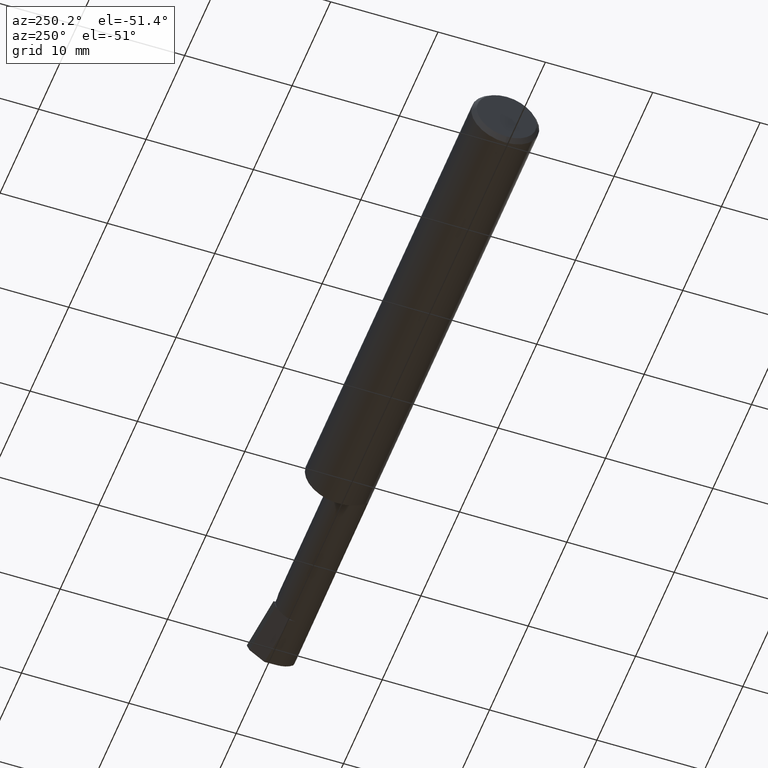
[diagram: clean part render]
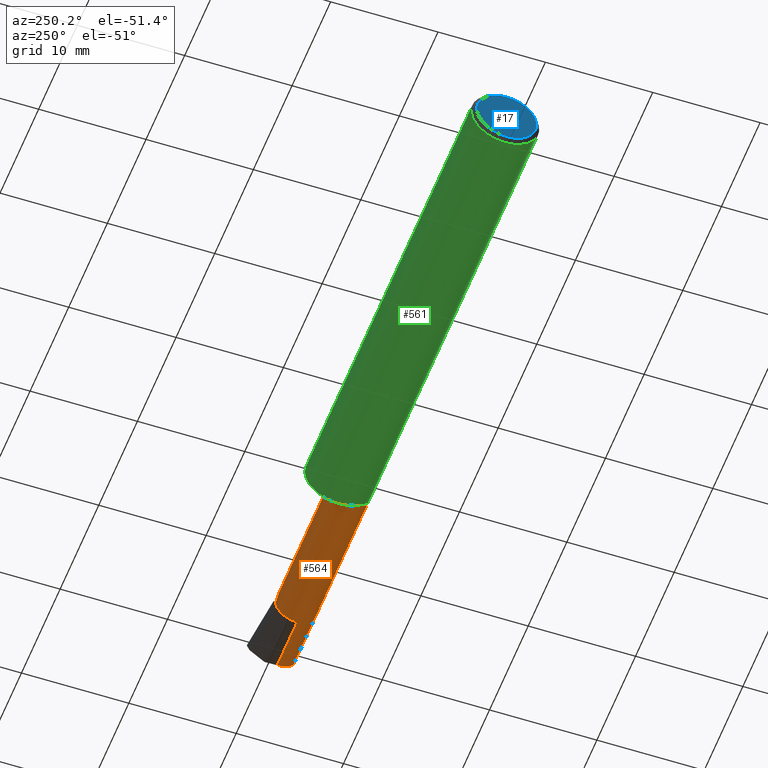
[diagram: same view with three faces highlighted in distinct colors, each labeled with its STEP entity id]
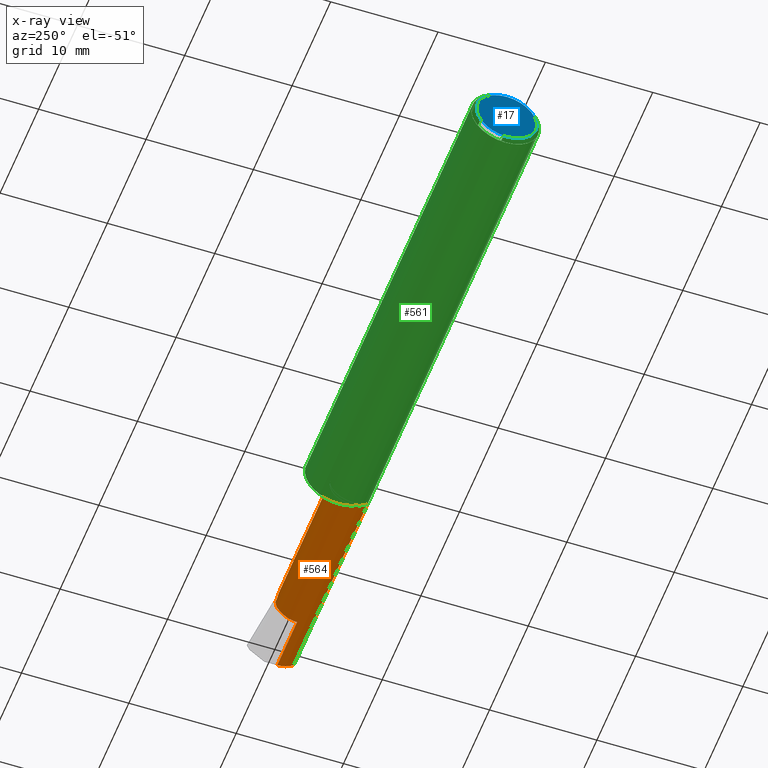
[diagram: x-ray of the same camera — body ghosted, the three highlighted faces saturated]
A machine part, auxiliary view with three faces highlighted in distinct colors.
The next image is the same camera in x-ray (body ghosted, the three faces saturated) — at least one of them is partly hidden behind the body in this view.
Their STEP definitions:

[orange] entity #564 — the highlighted cylindrical surface (edge-blend (fillet) strip) has radius 2.0104 mm, axis along (-1, 0, -0).
#1 = VERTEX_POINT ( 'NONE', #439 ) ;
#4 = DIRECTION ( 'NONE',  ( 1.000000000000000000, -3.414809992080329023E-18, 0.0000000000000000000 ) ) ;
#8 = EDGE_CURVE ( 'NONE', #317, #527, #427, .T. ) ;
#10 = CARTESIAN_POINT ( 'NONE',  ( 2.285000000000000142, -0.05399999999999999939, 0.0000000000000000000 ) ) ;
#11 = CARTESIAN_POINT ( 'NONE',  ( 2.010000000000000231, -0.1133222222222222686, -0.05239843939104745635 ) ) ;
#22 = DIRECTION ( 'NONE',  ( 0.0000000000000000000, -1.000000000000000000, 0.0000000000000000000 ) ) ;
#34 = CYLINDRICAL_SURFACE ( 'NONE', #247, 0.07914999999999995650 ) ;
#56 = DIRECTION ( 'NONE',  ( 0.0000000000000000000, -1.000000000000000000, 0.0000000000000000000 ) ) ;
#57 = CARTESIAN_POINT ( 'NONE',  ( 2.500000000000000000, -0.05399999999999999939, -0.07914999999999994262 ) ) ;
#59 = ORIENTED_EDGE ( 'NONE', *, *, #581, .T. ) ;
#62 = FACE_OUTER_BOUND ( 'NONE', #97, .T. ) ;
#69 = VECTOR ( 'NONE', #421, 39.37007874015748143 ) ;
#79 = ORIENTED_EDGE ( 'NONE', *, *, #578, .F. ) ;
#82 = CIRCLE ( 'NONE', #479, 0.07914999999999995650 ) ;
#83 = CIRCLE ( 'NONE', #98, 0.07914999999999995650 ) ;
#97 = EDGE_LOOP ( 'NONE', ( #308, #59, #79, #597, #158, #365, #464, #149, #297, #396 ) ) ;
#98 = AXIS2_PLACEMENT_3D ( 'NONE', #10, #186, #56 ) ;
#101 = VERTEX_POINT ( 'NONE', #318 ) ;
#121 = CARTESIAN_POINT ( 'NONE',  ( 2.489204846642126601, -0.1133222222222222686, -0.05239843939104745635 ) ) ;
#147 = DIRECTION ( 'NONE',  ( -3.414809992080329408E-18, -1.000000000000000000, 0.0000000000000000000 ) ) ;
#149 = ORIENTED_EDGE ( 'NONE', *, *, #540, .F. ) ;
#158 = ORIENTED_EDGE ( 'NONE', *, *, #424, .T. ) ;
#163 = CARTESIAN_POINT ( 'NONE',  ( 2.217601560608951861, -0.1133222222222222964, 0.05239843939104740084 ) ) ;
#169 = CARTESIAN_POINT ( 'NONE',  ( 2.487482489302630828, -0.09806266089631193728, -0.06967435635555055407 ) ) ;
#186 = DIRECTION ( 'NONE',  ( -1.000000000000000000, 3.414809992080329023E-18, -0.0000000000000000000 ) ) ;
#188 = DIRECTION ( 'NONE',  ( -1.000000000000000000, 3.414809992080329023E-18, -0.0000000000000000000 ) ) ;
#190 = LINE ( 'NONE', #455, #598 ) ;
#193 = DIRECTION ( 'NONE',  ( -1.000000000000000000, 5.691349986800549142E-18, -0.0000000000000000000 ) ) ;
#207 = VERTEX_POINT ( 'NONE', #163 ) ;
#221 = VERTEX_POINT ( 'NONE', #389 ) ;
#223 = CARTESIAN_POINT ( 'NONE',  ( 2.270000000000000018, 0.02514999999999993630, 2.816687638038912303E-17 ) ) ;
#234 = CARTESIAN_POINT ( 'NONE',  ( 2.285000000000000142, 0.02514999999999996058, 9.802154982235643272E-16 ) ) ;
#247 = AXIS2_PLACEMENT_3D ( 'NONE', #371, #330, #147 ) ;
#256 = AXIS2_PLACEMENT_3D ( 'NONE', #572, #425, #22 ) ;
#278 = CARTESIAN_POINT ( 'NONE',  ( 2.010000000000000231, -0.1133222222222222686, 0.05239843939104745635 ) ) ;
#282 = DIRECTION ( 'NONE',  ( 0.0000000000000000000, -1.000000000000000000, 0.0000000000000000000 ) ) ;
#288 = VERTEX_POINT ( 'NONE', #441 ) ;
#289 = LINE ( 'NONE', #278, #508 ) ;
#292 = LINE ( 'NONE', #11, #69 ) ;
#297 = ORIENTED_EDGE ( 'NONE', *, *, #493, .T. ) ;
#308 = ORIENTED_EDGE ( 'NONE', *, *, #8, .F. ) ;
#317 = VERTEX_POINT ( 'NONE', #394 ) ;
#318 = CARTESIAN_POINT ( 'NONE',  ( 2.285000000000000142, -0.05399999999999999939, -0.07914999999999994262 ) ) ;
#319 = CARTESIAN_POINT ( 'NONE',  ( 2.217601560608951861, -0.1133222222222222964, 0.05239843939104740084 ) ) ;
#330 = DIRECTION ( 'NONE',  ( -1.000000000000000000, 3.414809992080329023E-18, -0.0000000000000000000 ) ) ;
#358 = CARTESIAN_POINT ( 'NONE',  ( 2.183308174668249890, 0.02515000000000010977, 0.08669182533174922545 ) ) ;
#365 = ORIENTED_EDGE ( 'NONE', *, *, #391, .T. ) ;
#371 = CARTESIAN_POINT ( 'NONE',  ( 0.0000000000000000000, -0.05399999999999999245, 0.0000000000000000000 ) ) ;
#379 = VERTEX_POINT ( 'NONE', #404 ) ;
#389 = CARTESIAN_POINT ( 'NONE',  ( 2.270000000000000018, 0.02514999999999993630, 2.816687638038912303E-17 ) ) ;
#391 = EDGE_CURVE ( 'NONE', #221, #534, #190, .T. ) ;
#394 = CARTESIAN_POINT ( 'NONE',  ( 2.489204846642126601, -0.1133222222222222686, -0.05239843939104745635 ) ) ;
#396 = ORIENTED_EDGE ( 'NONE', *, *, #511, .F. ) ;
#404 = CARTESIAN_POINT ( 'NONE',  ( 2.285000000000000142, 0.01818157456899030175, -0.03247372465149766380 ) ) ;
#408 = AXIS2_PLACEMENT_3D ( 'NONE', #414, #188, #282 ) ;
#409 = CIRCLE ( 'NONE', #256, 0.07914999999999992875 ) ;
#414 = CARTESIAN_POINT ( 'NONE',  ( 2.285000000000000142, -0.05399999999999999939, 0.0000000000000000000 ) ) ;
#415 = EDGE_CURVE ( 'NONE', #288, #207, #289, .T. ) ;
#417 = DIRECTION ( 'NONE',  ( 1.000000000000000000, -3.414809992080329023E-18, 0.0000000000000000000 ) ) ;
#421 = DIRECTION ( 'NONE',  ( -1.000000000000000000, 3.414809992080329023E-18, -0.0000000000000000000 ) ) ;
#424 = EDGE_CURVE ( 'NONE', #207, #221, #599, .T. ) ;
#425 = DIRECTION ( 'NONE',  ( -1.000000000000000000, 3.414809992080329023E-18, -0.0000000000000000000 ) ) ;
#427 =( BOUNDED_CURVE ( )  B_SPLINE_CURVE ( 3, ( #121, #169, #485, #443 ),
 .UNSPECIFIED., .F., .F. ) 
 B_SPLINE_CURVE_WITH_KNOTS ( ( 4, 4 ),
 ( 5.645941690095282794, 6.493234751460117415 ),
 .UNSPECIFIED. ) 
 CURVE ( )  GEOMETRIC_REPRESENTATION_ITEM ( )  RATIONAL_B_SPLINE_CURVE ( ( 1.000000000000000000, 0.9410639745696123271, 0.9410639745696123271, 1.000000000000000000 ) ) 
 REPRESENTATION_ITEM ( '' )  );
#439 = CARTESIAN_POINT ( 'NONE',  ( 2.285000000000000142, -0.01935479767416502239, -0.07116482597324293169 ) ) ;
#441 = CARTESIAN_POINT ( 'NONE',  ( 1.734999999999999876, -0.1133222222222222131, 0.05239843939104742165 ) ) ;
#443 = CARTESIAN_POINT ( 'NONE',  ( 2.487472449114545014, -0.05399999999999999939, -0.07914999999999994262 ) ) ;
#445 = CIRCLE ( 'NONE', #408, 0.07914999999999995650 ) ;
#455 = CARTESIAN_POINT ( 'NONE',  ( 2.702822108735689715E-19, 0.02514999999999995364, 9.802154982235641300E-16 ) ) ;
#459 = CARTESIAN_POINT ( 'NONE',  ( 2.152626807264919506, -0.05593098589442786067, 0.1173731927350792209 ) ) ;
#464 = ORIENTED_EDGE ( 'NONE', *, *, #522, .T. ) ;
#465 = DIRECTION ( 'NONE',  ( 0.0000000000000000000, -1.000000000000000000, 0.0000000000000000000 ) ) ;
#467 = VERTEX_POINT ( 'NONE', #596 ) ;
#479 = AXIS2_PLACEMENT_3D ( 'NONE', #504, #417, #465 ) ;
#485 = CARTESIAN_POINT ( 'NONE',  ( 2.486868858499483803, -0.07705019563525712656, -0.07914999999999997038 ) ) ;
#493 = EDGE_CURVE ( 'NONE', #1, #101, #83, .T. ) ;
#500 = DIRECTION ( 'NONE',  ( 1.000000000000000000, -3.414809992080329023E-18, 0.0000000000000000000 ) ) ;
#504 = CARTESIAN_POINT ( 'NONE',  ( 2.285000000000000142, -0.05399999999999999939, 0.0000000000000000000 ) ) ;
#506 = CARTESIAN_POINT ( 'NONE',  ( 2.487472449114545014, -0.05399999999999999939, -0.07914999999999994262 ) ) ;
#508 = VECTOR ( 'NONE', #500, 39.37007874015748143 ) ;
#511 = EDGE_CURVE ( 'NONE', #527, #101, #549, .T. ) ;
#522 = EDGE_CURVE ( 'NONE', #534, #379, #445, .T. ) ;
#527 = VERTEX_POINT ( 'NONE', #506 ) ;
#534 = VERTEX_POINT ( 'NONE', #234 ) ;
#540 = EDGE_CURVE ( 'NONE', #1, #379, #82, .T. ) ;
#549 = LINE ( 'NONE', #57, #573 ) ;
#564 = ADVANCED_FACE ( 'NONE', ( #62 ), #34, .T. ) ;
#572 = CARTESIAN_POINT ( 'NONE',  ( 1.734999999999999876, -0.05399999999999999939, 0.0000000000000000000 ) ) ;
#573 = VECTOR ( 'NONE', #193, 39.37007874015748143 ) ;
#578 = EDGE_CURVE ( 'NONE', #288, #467, #409, .T. ) ;
#581 = EDGE_CURVE ( 'NONE', #317, #467, #292, .T. ) ;
#596 = CARTESIAN_POINT ( 'NONE',  ( 1.734999999999999876, -0.1133222222222222131, -0.05239843939104742165 ) ) ;
#597 = ORIENTED_EDGE ( 'NONE', *, *, #415, .T. ) ;
#598 = VECTOR ( 'NONE', #4, 39.37007874015748143 ) ;
#599 =( BOUNDED_CURVE ( )  B_SPLINE_CURVE ( 3, ( #319, #459, #358, #223 ),
 .UNSPECIFIED., .F., .F. ) 
 B_SPLINE_CURVE_WITH_KNOTS ( ( 4, 4 ),
 ( 5.435892245814750723, 7.853981633974484566 ),
 .UNSPECIFIED. ) 
 CURVE ( )  GEOMETRIC_REPRESENTATION_ITEM ( )  RATIONAL_B_SPLINE_CURVE ( ( 1.000000000000000000, 0.5692753596694914986, 0.5692753596694914986, 1.000000000000000000 ) ) 
 REPRESENTATION_ITEM ( '' )  );

[blue] entity #17 — the highlighted planar face has unit normal (1, 0, 0).
#17 = ADVANCED_FACE ( 'NONE', ( #567 ), #587, .F. ) ;
#18 = AXIS2_PLACEMENT_3D ( 'NONE', #127, #257, #447 ) ;
#19 = ORIENTED_EDGE ( 'NONE', *, *, #458, .T. ) ;
#29 = EDGE_CURVE ( 'NONE', #538, #228, #197, .T. ) ;
#75 = CARTESIAN_POINT ( 'NONE',  ( 0.0000000000000000000, 1.437123018799416669E-17, 0.1098499999999996424 ) ) ;
#112 = AXIS2_PLACEMENT_3D ( 'NONE', #537, #124, #310 ) ;
#124 = DIRECTION ( 'NONE',  ( -1.000000000000000000, -0.0000000000000000000, -0.0000000000000000000 ) ) ;
#127 = CARTESIAN_POINT ( 'NONE',  ( 0.0000000000000000000, 0.0000000000000000000, 0.0000000000000000000 ) ) ;
#197 = CIRCLE ( 'NONE', #112, 0.1098499999999996424 ) ;
#211 = ORIENTED_EDGE ( 'NONE', *, *, #29, .T. ) ;
#225 = DIRECTION ( 'NONE',  ( -1.000000000000000000, -0.0000000000000000000, -0.0000000000000000000 ) ) ;
#228 = VERTEX_POINT ( 'NONE', #75 ) ;
#257 = DIRECTION ( 'NONE',  ( 1.000000000000000000, 0.0000000000000000000, 0.0000000000000000000 ) ) ;
#276 = DIRECTION ( 'NONE',  ( 0.0000000000000000000, 0.0000000000000000000, 1.000000000000000000 ) ) ;
#281 = CIRCLE ( 'NONE', #419, 0.1098499999999996424 ) ;
#310 = DIRECTION ( 'NONE',  ( 0.0000000000000000000, 0.0000000000000000000, 1.000000000000000000 ) ) ;
#326 = CARTESIAN_POINT ( 'NONE',  ( 0.0000000000000000000, 0.0000000000000000000, -0.1098499999999996424 ) ) ;
#419 = AXIS2_PLACEMENT_3D ( 'NONE', #497, #225, #276 ) ;
#447 = DIRECTION ( 'NONE',  ( 0.0000000000000000000, 0.0000000000000000000, -1.000000000000000000 ) ) ;
#458 = EDGE_CURVE ( 'NONE', #228, #538, #281, .T. ) ;
#497 = CARTESIAN_POINT ( 'NONE',  ( 0.0000000000000000000, 0.0000000000000000000, 0.0000000000000000000 ) ) ;
#526 = EDGE_LOOP ( 'NONE', ( #211, #19 ) ) ;
#537 = CARTESIAN_POINT ( 'NONE',  ( 0.0000000000000000000, 0.0000000000000000000, 0.0000000000000000000 ) ) ;
#538 = VERTEX_POINT ( 'NONE', #326 ) ;
#567 = FACE_OUTER_BOUND ( 'NONE', #526, .T. ) ;
#587 = PLANE ( 'NONE',  #18 ) ;

[green] entity #561 — the highlighted cylindrical surface (edge-blend (fillet) strip) has radius 3.1712 mm, axis along (-1, -0, -0).
#2 = CARTESIAN_POINT ( 'NONE',  ( 1.709999999999999964, 0.04895916665957456004, 0.1148500000000000076 ) ) ;
#6 = DIRECTION ( 'NONE',  ( 1.000000000000000000, 0.0000000000000000000, 0.0000000000000000000 ) ) ;
#9 = EDGE_LOOP ( 'NONE', ( #300, #383, #232, #120, #325, #541, #244, #77, #151, #167, #146, #246, #584 ) ) ;
#11 = CARTESIAN_POINT ( 'NONE',  ( 2.010000000000000231, -0.1133222222222222686, -0.05239843939104745635 ) ) ;
#14 = CARTESIAN_POINT ( 'NONE',  ( 2.270000000000000018, -0.1248500000000000165, 2.816687638038912303E-17 ) ) ;
#15 = VECTOR ( 'NONE', #143, 39.37007874015748143 ) ;
#23 = VERTEX_POINT ( 'NONE', #171 ) ;
#32 = CARTESIAN_POINT ( 'NONE',  ( 1.723217602974939533, -0.1090277136498279120, 0.06089509507572538061 ) ) ;
#33 = CARTESIAN_POINT ( 'NONE',  ( 2.495338905960690301, -0.1248500000000000582, -6.632093541198142708E-17 ) ) ;
#40 = EDGE_CURVE ( 'NONE', #467, #90, #117, .T. ) ;
#41 = CARTESIAN_POINT ( 'NONE',  ( 1.734999999999999876, -0.1133222222222222131, 0.05239843939104742165 ) ) ;
#43 = VERTEX_POINT ( 'NONE', #2 ) ;
#46 = DIRECTION ( 'NONE',  ( 1.000000000000000000, -3.414809992080329023E-18, 0.0000000000000000000 ) ) ;
#49 = CARTESIAN_POINT ( 'NONE',  ( 1.710429435078794747, -0.08094870196673338569, -0.09525057567498897149 ) ) ;
#67 = CARTESIAN_POINT ( 'NONE',  ( 0.01499999999999999424, 0.0000000000000000000, 0.0000000000000000000 ) ) ;
#69 = VECTOR ( 'NONE', #421, 39.37007874015748143 ) ;
#70 = DIRECTION ( 'NONE',  ( -1.000000000000000000, -0.0000000000000000000, -0.0000000000000000000 ) ) ;
#76 = AXIS2_PLACEMENT_3D ( 'NONE', #67, #70, #209 ) ;
#77 = ORIENTED_EDGE ( 'NONE', *, *, #466, .T. ) ;
#78 = CARTESIAN_POINT ( 'NONE',  ( 1.724891482046761126, -0.1103130882036816723, 0.05851436580809128707 ) ) ;
#81 = CARTESIAN_POINT ( 'NONE',  ( 2.495338905960690301, -0.1248500000000000582, -6.632093541198142708E-17 ) ) ;
#87 = CARTESIAN_POINT ( 'NONE',  ( 1.709999999999999964, -0.07089166666666683880, -0.1027710761704002107 ) ) ;
#88 = CIRCLE ( 'NONE', #451, 0.1248500000000000026 ) ;
#90 = VERTEX_POINT ( 'NONE', #138 ) ;
#100 = CARTESIAN_POINT ( 'NONE',  ( 2.251833290544947630, -0.1248500000000000165, 0.01816670945505155857 ) ) ;
#103 = AXIS2_PLACEMENT_3D ( 'NONE', #460, #191, #331 ) ;
#117 = B_SPLINE_CURVE_WITH_KNOTS ( 'NONE', 3,
 ( #266, #393, #309, #353, #180, #494, #277, #224, #135, #546, #450, #49, #178, #87 ),
 .UNSPECIFIED., .F., .F.,
 ( 4, 2, 2, 2, 2, 2, 4 ),
 ( 1.961860195742902937E-07, 0.0001199556417433995091, 0.0002397150974672247119, 0.0004792340089148616734, 0.0009582718318101460589, 0.001437309654705431041, 0.001916347477600715806 ),
 .UNSPECIFIED. ) ;
#120 = ORIENTED_EDGE ( 'NONE', *, *, #571, .T. ) ;
#131 = EDGE_CURVE ( 'NONE', #90, #43, #583, .T. ) ;
#135 = CARTESIAN_POINT ( 'NONE',  ( 1.716709462345916704, -0.1014961360546400293, -0.07295290821911704082 ) ) ;
#138 = CARTESIAN_POINT ( 'NONE',  ( 1.709999999999999964, -0.07089166666666683880, -0.1027710761704002107 ) ) ;
#143 = DIRECTION ( 'NONE',  ( -1.000000000000000000, -0.0000000000000000000, -0.0000000000000000000 ) ) ;
#146 = ORIENTED_EDGE ( 'NONE', *, *, #482, .T. ) ;
#151 = ORIENTED_EDGE ( 'NONE', *, *, #536, .F. ) ;
#157 =( BOUNDED_CURVE ( )  B_SPLINE_CURVE ( 3, ( #216, #356, #255, #33 ),
 .UNSPECIFIED., .F., .F. ) 
 B_SPLINE_CURVE_WITH_KNOTS ( ( 4, 4 ),
 ( 0.9276418632516101326, 1.360746882514365153 ),
 .UNSPECIFIED. ) 
 CURVE ( )  GEOMETRIC_REPRESENTATION_ITEM ( )  RATIONAL_B_SPLINE_CURVE ( ( 1.000000000000000000, 0.9844293286710339430, 0.9844293286710339430, 1.000000000000000000 ) ) 
 REPRESENTATION_ITEM ( '' )  );
#159 = CARTESIAN_POINT ( 'NONE',  ( 2.217601560608951861, -0.1133222222222222964, 0.05239843939104740084 ) ) ;
#163 = CARTESIAN_POINT ( 'NONE',  ( 2.217601560608951861, -0.1133222222222222964, 0.05239843939104740084 ) ) ;
#167 = ORIENTED_EDGE ( 'NONE', *, *, #179, .F. ) ;
#168 = CARTESIAN_POINT ( 'NONE',  ( 0.01499999999999999424, 0.0000000000000000000, -0.1248500000000000026 ) ) ;
#170 = VERTEX_POINT ( 'NONE', #501 ) ;
#171 = CARTESIAN_POINT ( 'NONE',  ( 0.01499999999999999077, -0.04895916665957456004, 0.1148500000000000215 ) ) ;
#178 = CARTESIAN_POINT ( 'NONE',  ( 1.709999999999999964, -0.07605073478940851950, -0.09921234202752111930 ) ) ;
#179 = EDGE_CURVE ( 'NONE', #170, #194, #294, .T. ) ;
#180 = CARTESIAN_POINT ( 'NONE',  ( 1.728018389903473340, -0.1118940578004066488, -0.05539504279880012177 ) ) ;
#181 = DIRECTION ( 'NONE',  ( -1.000000000000000000, -0.0000000000000000000, -0.0000000000000000000 ) ) ;
#183 = CYLINDRICAL_SURFACE ( 'NONE', #103, 0.1248500000000000026 ) ;
#191 = DIRECTION ( 'NONE',  ( -1.000000000000000000, -0.0000000000000000000, -0.0000000000000000000 ) ) ;
#194 = VERTEX_POINT ( 'NONE', #168 ) ;
#203 = CIRCLE ( 'NONE', #531, 0.1248500000000000026 ) ;
#207 = VERTEX_POINT ( 'NONE', #163 ) ;
#209 = DIRECTION ( 'NONE',  ( 0.0000000000000000000, 0.0000000000000000000, 1.000000000000000000 ) ) ;
#212 = FACE_OUTER_BOUND ( 'NONE', #9, .T. ) ;
#215 = CARTESIAN_POINT ( 'NONE',  ( 1.718812999615358716, -0.1047986892473505155, 0.06808587976958074828 ) ) ;
#216 = CARTESIAN_POINT ( 'NONE',  ( 2.489204846642126601, -0.1133222222222222686, -0.05239843939104745635 ) ) ;
#224 = CARTESIAN_POINT ( 'NONE',  ( 1.718837986083219915, -0.1048226606062678257, -0.06804511026469615975 ) ) ;
#232 = ORIENTED_EDGE ( 'NONE', *, *, #434, .T. ) ;
#244 = ORIENTED_EDGE ( 'NONE', *, *, #593, .F. ) ;
#246 = ORIENTED_EDGE ( 'NONE', *, *, #131, .F. ) ;
#249 = CARTESIAN_POINT ( 'NONE',  ( 1.709999999999997300, -0.07604212793636097589, 0.09921827904968776035 ) ) ;
#255 = CARTESIAN_POINT ( 'NONE',  ( 2.493107549887203067, -0.1248500000000000165, -0.01816670945505174245 ) ) ;
#259 = EDGE_CURVE ( 'NONE', #472, #288, #264, .T. ) ;
#264 = B_SPLINE_CURVE_WITH_KNOTS ( 'NONE', 3,
 ( #483, #249, #576, #480, #267, #533, #215, #32, #78, #588, #589, #313, #354, #41 ),
 .UNSPECIFIED., .F., .F.,
 ( 4, 2, 2, 2, 2, 2, 4 ),
 ( 6.218642020841659644E-05, 0.0005341583913332138443, 0.001006130362458011133, 0.001478102333582808096, 0.001714088319145201916, 0.001832081311926399151, 0.001950074304707596169 ),
 .UNSPECIFIED. ) ;
#266 = CARTESIAN_POINT ( 'NONE',  ( 1.734999999999999876, -0.1133222222222222131, -0.05239843939104742165 ) ) ;
#267 = CARTESIAN_POINT ( 'NONE',  ( 1.713311842522019068, -0.09402697795089827448, 0.08235509766544019117 ) ) ;
#277 = CARTESIAN_POINT ( 'NONE',  ( 1.723205018706407410, -0.1090156405642970922, -0.06091562844815655298 ) ) ;
#278 = CARTESIAN_POINT ( 'NONE',  ( 2.010000000000000231, -0.1133222222222222686, 0.05239843939104745635 ) ) ;
#287 = DIRECTION ( 'NONE',  ( 0.0000000000000000000, 0.0000000000000000000, 1.000000000000000000 ) ) ;
#288 = VERTEX_POINT ( 'NONE', #441 ) ;
#289 = LINE ( 'NONE', #278, #508 ) ;
#292 = LINE ( 'NONE', #11, #69 ) ;
#294 = CIRCLE ( 'NONE', #76, 0.1248500000000000026 ) ;
#298 = EDGE_CURVE ( 'NONE', #317, #305, #157, .T. ) ;
#300 = ORIENTED_EDGE ( 'NONE', *, *, #581, .F. ) ;
#305 = VERTEX_POINT ( 'NONE', #81 ) ;
#309 = CARTESIAN_POINT ( 'NONE',  ( 1.731867218484672621, -0.1130881303947560285, -0.05290831216931977249 ) ) ;
#313 = CARTESIAN_POINT ( 'NONE',  ( 1.731855009147952096, -0.1130869929873387081, 0.05291095013438988637 ) ) ;
#315 = VECTOR ( 'NONE', #181, 39.37007874015748143 ) ;
#317 = VERTEX_POINT ( 'NONE', #394 ) ;
#323 = VERTEX_POINT ( 'NONE', #582 ) ;
#325 = ORIENTED_EDGE ( 'NONE', *, *, #415, .F. ) ;
#331 = DIRECTION ( 'NONE',  ( 0.0000000000000000000, 0.0000000000000000000, 1.000000000000000000 ) ) ;
#337 = DIRECTION ( 'NONE',  ( 1.000000000000000000, -3.414809992080329023E-18, 0.0000000000000000000 ) ) ;
#348 = LINE ( 'NONE', #542, #315 ) ;
#353 = CARTESIAN_POINT ( 'NONE',  ( 1.729195140613335901, -0.1123729516825158065, -0.05441079362540581638 ) ) ;
#354 = CARTESIAN_POINT ( 'NONE',  ( 1.733393805215129424, -0.1133222222232596332, 0.05239843938880408419 ) ) ;
#356 = CARTESIAN_POINT ( 'NONE',  ( 2.491030522740640851, -0.1209466293052442881, -0.03590911711702328424 ) ) ;
#383 = ORIENTED_EDGE ( 'NONE', *, *, #298, .T. ) ;
#388 = VECTOR ( 'NONE', #6, 39.37007874015748143 ) ;
#393 = CARTESIAN_POINT ( 'NONE',  ( 1.733397973893801236, -0.1133222222222222547, -0.05239843939104751186 ) ) ;
#394 = CARTESIAN_POINT ( 'NONE',  ( 2.489204846642126601, -0.1133222222222222686, -0.05239843939104745635 ) ) ;
#403 = DIRECTION ( 'NONE',  ( 0.0000000000000000000, 1.000000000000000000, 0.0000000000000000000 ) ) ;
#411 = CARTESIAN_POINT ( 'NONE',  ( 4.111069666048746882E-31, -0.1248499999999999888, 9.802154982235641300E-16 ) ) ;
#415 = EDGE_CURVE ( 'NONE', #288, #207, #289, .T. ) ;
#421 = DIRECTION ( 'NONE',  ( -1.000000000000000000, 3.414809992080329023E-18, -0.0000000000000000000 ) ) ;
#428 = CARTESIAN_POINT ( 'NONE',  ( 2.234090882882976192, -0.1209466293052443298, 0.03590911711702311770 ) ) ;
#430 = CARTESIAN_POINT ( 'NONE',  ( 1.709999999999999964, 0.0000000000000000000, 0.0000000000000000000 ) ) ;
#433 = LINE ( 'NONE', #411, #15 ) ;
#434 = EDGE_CURVE ( 'NONE', #305, #323, #433, .T. ) ;
#441 = CARTESIAN_POINT ( 'NONE',  ( 1.734999999999999876, -0.1133222222222222131, 0.05239843939104742165 ) ) ;
#450 = CARTESIAN_POINT ( 'NONE',  ( 1.712089430766777998, -0.08992021952243409166, -0.08683155323701803596 ) ) ;
#451 = AXIS2_PLACEMENT_3D ( 'NONE', #430, #337, #468 ) ;
#452 = CARTESIAN_POINT ( 'NONE',  ( 0.0000000000000000000, 0.04895916665957457392, 0.1148500000000000076 ) ) ;
#460 = CARTESIAN_POINT ( 'NONE',  ( 0.0000000000000000000, 0.0000000000000000000, 0.0000000000000000000 ) ) ;
#461 = CARTESIAN_POINT ( 'NONE',  ( 0.01499999999999999424, 0.0000000000000000000, 0.0000000000000000000 ) ) ;
#466 = EDGE_CURVE ( 'NONE', #489, #23, #348, .T. ) ;
#467 = VERTEX_POINT ( 'NONE', #596 ) ;
#468 = DIRECTION ( 'NONE',  ( 0.0000000000000000000, 1.000000000000000000, 0.0000000000000000000 ) ) ;
#472 = VERTEX_POINT ( 'NONE', #509 ) ;
#474 = AXIS2_PLACEMENT_3D ( 'NONE', #502, #46, #403 ) ;
#480 = CARTESIAN_POINT ( 'NONE',  ( 1.712066153268988922, -0.08982957272875705113, 0.08692514756739026793 ) ) ;
#482 = EDGE_CURVE ( 'NONE', #170, #43, #539, .T. ) ;
#483 = CARTESIAN_POINT ( 'NONE',  ( 1.709999999999999964, -0.07089166666666683880, 0.1027710761704002107 ) ) ;
#489 = VERTEX_POINT ( 'NONE', #556 ) ;
#494 = CARTESIAN_POINT ( 'NONE',  ( 1.724878942730255105, -0.1103076286869489331, -0.05852540734030608344 ) ) ;
#500 = DIRECTION ( 'NONE',  ( 1.000000000000000000, -3.414809992080329023E-18, 0.0000000000000000000 ) ) ;
#501 = CARTESIAN_POINT ( 'NONE',  ( 0.01499999999999999424, 0.04895916665957457392, 0.1148500000000000076 ) ) ;
#502 = CARTESIAN_POINT ( 'NONE',  ( 1.709999999999999964, 0.0000000000000000000, 0.0000000000000000000 ) ) ;
#508 = VECTOR ( 'NONE', #500, 39.37007874015748143 ) ;
#509 = CARTESIAN_POINT ( 'NONE',  ( 1.709999999999999964, -0.07089166666666683880, 0.1027710761704002107 ) ) ;
#531 = AXIS2_PLACEMENT_3D ( 'NONE', #461, #554, #287 ) ;
#533 = CARTESIAN_POINT ( 'NONE',  ( 1.716702553529777964, -0.1014824713796366185, 0.07297083456247527300 ) ) ;
#536 = EDGE_CURVE ( 'NONE', #194, #23, #203, .T. ) ;
#539 = LINE ( 'NONE', #452, #388 ) ;
#541 = ORIENTED_EDGE ( 'NONE', *, *, #259, .F. ) ;
#542 = CARTESIAN_POINT ( 'NONE',  ( 0.0000000000000000000, -0.04895916665957456004, 0.1148500000000000076 ) ) ;
#546 = CARTESIAN_POINT ( 'NONE',  ( 1.713310246323732855, -0.09402499227299755680, -0.08235832246780931676 ) ) ;
#554 = DIRECTION ( 'NONE',  ( -1.000000000000000000, -0.0000000000000000000, -0.0000000000000000000 ) ) ;
#556 = CARTESIAN_POINT ( 'NONE',  ( 1.709999999999999964, -0.04895916665957457392, 0.1148500000000000215 ) ) ;
#561 = ADVANCED_FACE ( 'NONE', ( #212 ), #183, .T. ) ;
#565 =( BOUNDED_CURVE ( )  B_SPLINE_CURVE ( 3, ( #14, #100, #428, #159 ),
 .UNSPECIFIED., .F., .T. ) 
 B_SPLINE_CURVE_WITH_KNOTS ( ( 4, 4 ),
 ( 4.712388980384688786, 5.145493999647444028 ),
 .UNSPECIFIED. ) 
 CURVE ( )  GEOMETRIC_REPRESENTATION_ITEM ( )  RATIONAL_B_SPLINE_CURVE ( ( 1.000000000000000000, 0.9844293286710339430, 0.9844293286710339430, 1.000000000000000000 ) ) 
 REPRESENTATION_ITEM ( '' )  );
#571 = EDGE_CURVE ( 'NONE', #323, #207, #565, .T. ) ;
#576 = CARTESIAN_POINT ( 'NONE',  ( 1.710418395875213715, -0.08085314529530900074, 0.09533153891603389496 ) ) ;
#581 = EDGE_CURVE ( 'NONE', #317, #467, #292, .T. ) ;
#582 = CARTESIAN_POINT ( 'NONE',  ( 2.270000000000000018, -0.1248500000000000165, 2.816687638038912303E-17 ) ) ;
#583 = CIRCLE ( 'NONE', #474, 0.1248500000000000026 ) ;
#584 = ORIENTED_EDGE ( 'NONE', *, *, #40, .F. ) ;
#588 = CARTESIAN_POINT ( 'NONE',  ( 1.728003366130775209, -0.1118869025553488467, 0.05540929543234569127 ) ) ;
#589 = CARTESIAN_POINT ( 'NONE',  ( 1.729156347344547484, -0.1123603976562050355, 0.05443691454869345470 ) ) ;
#593 = EDGE_CURVE ( 'NONE', #489, #472, #88, .T. ) ;
#596 = CARTESIAN_POINT ( 'NONE',  ( 1.734999999999999876, -0.1133222222222222131, -0.05239843939104742165 ) ) ;